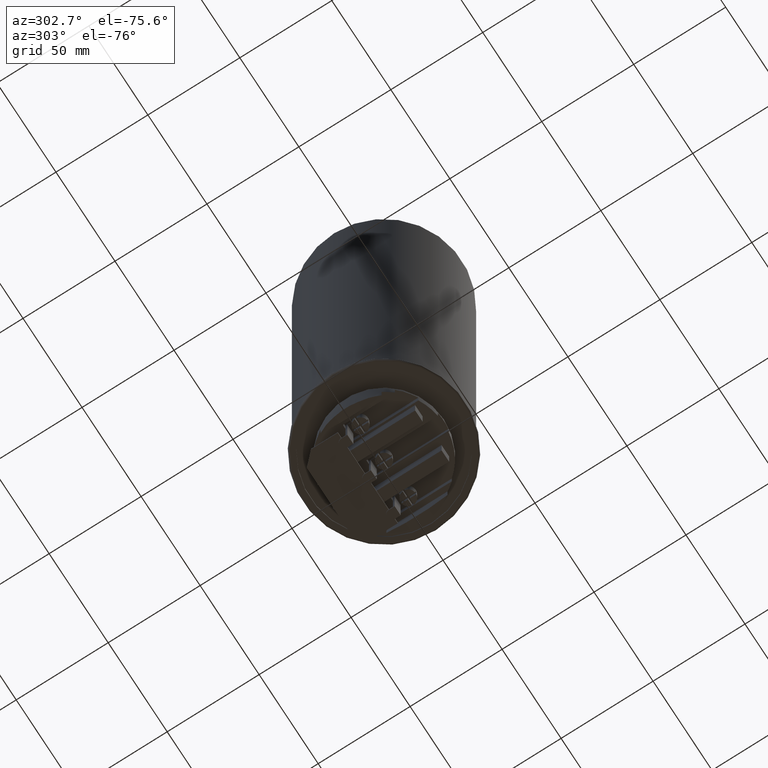
[diagram: clean part render]
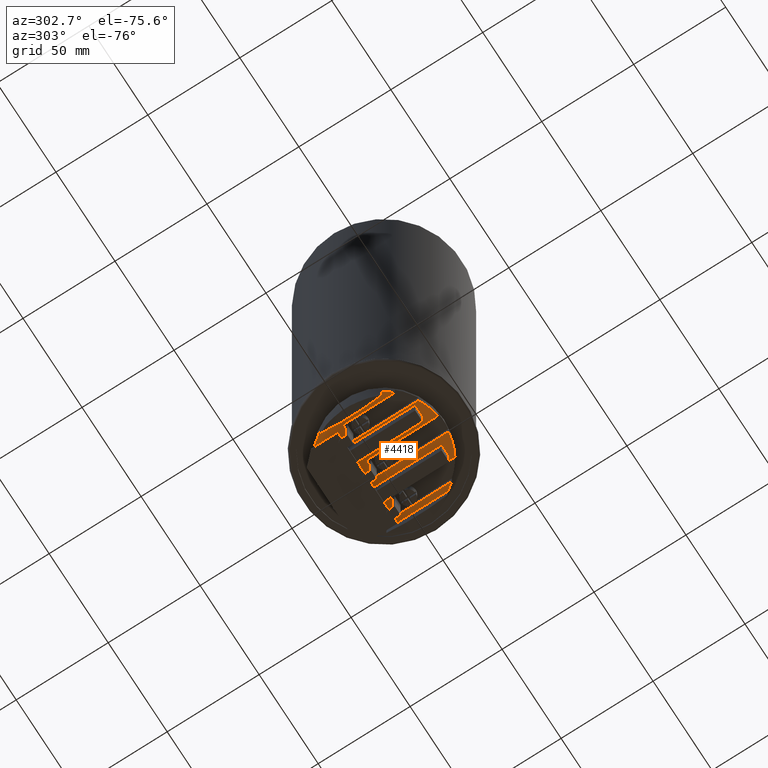
[diagram: same view with one face highlighted and labeled with its STEP entity id]
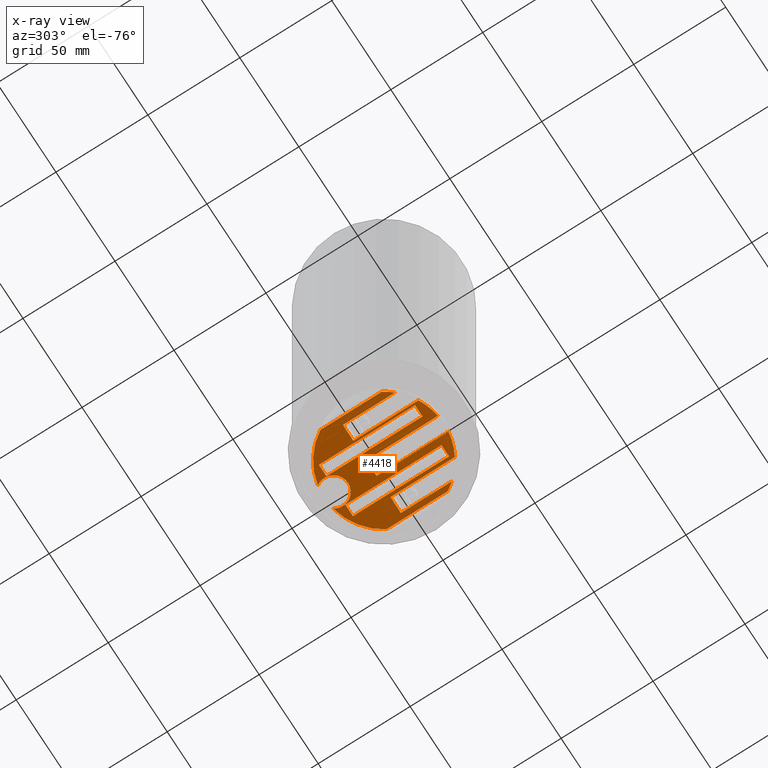
[diagram: x-ray of the same camera — body ghosted, the highlighted face saturated]
A machine part, auxiliary view. The second image highlights one B-rep face of the part: STEP entity #4418.
The next image is the same camera in x-ray: the body ghosted, the highlighted face saturated — about 0% of this face is hidden behind the body in this view.
In plain terms, the highlighted planar face has unit normal (0, 0, 1).
Its self-contained STEP definition (entity closure, byte-faithful):
#195=FACE_BOUND('',#605,.T.);
#196=FACE_BOUND('',#606,.T.);
#211=PLANE('',#4787);
#352=FACE_OUTER_BOUND('',#604,.T.);
#604=EDGE_LOOP('',(#3043,#3044,#3045,#3046,#3047,#3048,#3049,#3050,#3051,
#3052,#3053,#3054,#3055,#3056,#3057,#3058,#3059,#3060));
#605=EDGE_LOOP('',(#3061,#3062,#3063,#3064));
#606=EDGE_LOOP('',(#3065,#3066,#3067,#3068));
#870=CIRCLE('',#4769,1.28);
#872=CIRCLE('',#4771,1.28);
#874=CIRCLE('',#4775,1.28);
#876=CIRCLE('',#4777,1.28);
#878=CIRCLE('',#4781,1.28);
#880=CIRCLE('',#4783,1.28);
#881=CIRCLE('',#4788,0.309);
#1001=LINE('',#6279,#1456);
#1005=LINE('',#6286,#1460);
#1006=LINE('',#6290,#1461);
#1010=LINE('',#6298,#1465);
#1011=LINE('',#6300,#1466);
#1012=LINE('',#6301,#1467);
#1013=LINE('',#6302,#1468);
#1014=LINE('',#6304,#1469);
#1015=LINE('',#6306,#1470);
#1016=LINE('',#6308,#1471);
#1017=LINE('',#6309,#1472);
#1018=LINE('',#6310,#1473);
#1019=LINE('',#6312,#1474);
#1020=LINE('',#6314,#1475);
#1021=LINE('',#6315,#1476);
#1022=LINE('',#6318,#1477);
#1023=LINE('',#6320,#1478);
#1024=LINE('',#6322,#1479);
#1025=LINE('',#6323,#1480);
#1456=VECTOR('',#5150,0.393700787401575);
#1460=VECTOR('',#5156,0.393700787401575);
#1461=VECTOR('',#5159,0.393700787401575);
#1465=VECTOR('',#5165,0.393700787401575);
#1466=VECTOR('',#5166,0.393700787401575);
#1467=VECTOR('',#5167,0.393700787401575);
#1468=VECTOR('',#5168,0.393700787401575);
#1469=VECTOR('',#5171,0.393700787401575);
#1470=VECTOR('',#5172,0.393700787401575);
#1471=VECTOR('',#5173,0.393700787401575);
#1472=VECTOR('',#5174,0.393700787401575);
#1473=VECTOR('',#5175,0.393700787401575);
#1474=VECTOR('',#5176,0.393700787401575);
#1475=VECTOR('',#5177,0.393700787401575);
#1476=VECTOR('',#5178,0.393700787401575);
#1477=VECTOR('',#5179,0.393700787401575);
#1478=VECTOR('',#5180,0.393700787401575);
#1479=VECTOR('',#5181,0.393700787401575);
#1480=VECTOR('',#5182,0.393700787401575);
#1898=VERTEX_POINT('',#6219);
#1901=VERTEX_POINT('',#6224);
#1902=VERTEX_POINT('',#6226);
#1905=VERTEX_POINT('',#6232);
#1906=VERTEX_POINT('',#6234);
#1911=VERTEX_POINT('',#6244);
#1912=VERTEX_POINT('',#6246);
#1915=VERTEX_POINT('',#6252);
#1916=VERTEX_POINT('',#6254);
#1921=VERTEX_POINT('',#6264);
#1922=VERTEX_POINT('',#6266);
#1925=VERTEX_POINT('',#6272);
#1927=VERTEX_POINT('',#6278);
#1929=VERTEX_POINT('',#6284);
#1930=VERTEX_POINT('',#6288);
#1931=VERTEX_POINT('',#6289);
#1934=VERTEX_POINT('',#6297);
#1935=VERTEX_POINT('',#6299);
#1936=VERTEX_POINT('',#6305);
#1937=VERTEX_POINT('',#6307);
#1938=VERTEX_POINT('',#6311);
#1939=VERTEX_POINT('',#6313);
#1940=VERTEX_POINT('',#6316);
#1941=VERTEX_POINT('',#6317);
#1942=VERTEX_POINT('',#6319);
#1943=VERTEX_POINT('',#6321);
#2333=EDGE_CURVE('',#1901,#1902,#870,.T.);
#2337=EDGE_CURVE('',#1905,#1906,#872,.T.);
#2343=EDGE_CURVE('',#1911,#1912,#874,.T.);
#2347=EDGE_CURVE('',#1915,#1916,#876,.T.);
#2353=EDGE_CURVE('',#1921,#1922,#878,.T.);
#2357=EDGE_CURVE('',#1925,#1898,#880,.T.);
#2359=EDGE_CURVE('',#1927,#1898,#1001,.T.);
#2363=EDGE_CURVE('',#1901,#1929,#1005,.T.);
#2364=EDGE_CURVE('',#1930,#1931,#1006,.T.);
#2368=EDGE_CURVE('',#1925,#1934,#1010,.T.);
#2369=EDGE_CURVE('',#1934,#1935,#1011,.T.);
#2370=EDGE_CURVE('',#1935,#1922,#1012,.T.);
#2371=EDGE_CURVE('',#1921,#1916,#1013,.T.);
#2372=EDGE_CURVE('',#1915,#1912,#881,.T.);
#2373=EDGE_CURVE('',#1911,#1906,#1014,.T.);
#2374=EDGE_CURVE('',#1905,#1936,#1015,.T.);
#2375=EDGE_CURVE('',#1936,#1937,#1016,.T.);
#2376=EDGE_CURVE('',#1937,#1902,#1017,.T.);
#2377=EDGE_CURVE('',#1929,#1927,#1018,.T.);
#2378=EDGE_CURVE('',#1931,#1938,#1019,.T.);
#2379=EDGE_CURVE('',#1938,#1939,#1020,.T.);
#2380=EDGE_CURVE('',#1939,#1930,#1021,.T.);
#2381=EDGE_CURVE('',#1940,#1941,#1022,.T.);
#2382=EDGE_CURVE('',#1941,#1942,#1023,.T.);
#2383=EDGE_CURVE('',#1942,#1943,#1024,.T.);
#2384=EDGE_CURVE('',#1943,#1940,#1025,.T.);
#3043=ORIENTED_EDGE('',*,*,#2359,.T.);
#3044=ORIENTED_EDGE('',*,*,#2357,.F.);
#3045=ORIENTED_EDGE('',*,*,#2368,.T.);
#3046=ORIENTED_EDGE('',*,*,#2369,.T.);
#3047=ORIENTED_EDGE('',*,*,#2370,.T.);
#3048=ORIENTED_EDGE('',*,*,#2353,.F.);
#3049=ORIENTED_EDGE('',*,*,#2371,.T.);
#3050=ORIENTED_EDGE('',*,*,#2347,.F.);
#3051=ORIENTED_EDGE('',*,*,#2372,.T.);
#3052=ORIENTED_EDGE('',*,*,#2343,.F.);
#3053=ORIENTED_EDGE('',*,*,#2373,.T.);
#3054=ORIENTED_EDGE('',*,*,#2337,.F.);
#3055=ORIENTED_EDGE('',*,*,#2374,.T.);
#3056=ORIENTED_EDGE('',*,*,#2375,.T.);
#3057=ORIENTED_EDGE('',*,*,#2376,.T.);
#3058=ORIENTED_EDGE('',*,*,#2333,.F.);
#3059=ORIENTED_EDGE('',*,*,#2363,.T.);
#3060=ORIENTED_EDGE('',*,*,#2377,.T.);
#3061=ORIENTED_EDGE('',*,*,#2364,.T.);
#3062=ORIENTED_EDGE('',*,*,#2378,.T.);
#3063=ORIENTED_EDGE('',*,*,#2379,.T.);
#3064=ORIENTED_EDGE('',*,*,#2380,.T.);
#3065=ORIENTED_EDGE('',*,*,#2381,.T.);
#3066=ORIENTED_EDGE('',*,*,#2382,.T.);
#3067=ORIENTED_EDGE('',*,*,#2383,.T.);
#3068=ORIENTED_EDGE('',*,*,#2384,.T.);
#4418=ADVANCED_FACE('',(#352,#195,#196),#211,.F.);
#4769=AXIS2_PLACEMENT_3D('',#6227,#5107,#5108);
#4771=AXIS2_PLACEMENT_3D('',#6235,#5113,#5114);
#4775=AXIS2_PLACEMENT_3D('',#6247,#5123,#5124);
#4777=AXIS2_PLACEMENT_3D('',#6255,#5129,#5130);
#4781=AXIS2_PLACEMENT_3D('',#6267,#5139,#5140);
#4783=AXIS2_PLACEMENT_3D('',#6274,#5145,#5146);
#4787=AXIS2_PLACEMENT_3D('',#6296,#5163,#5164);
#4788=AXIS2_PLACEMENT_3D('',#6303,#5169,#5170);
#5107=DIRECTION('center_axis',(0.,0.,1.));
#5108=DIRECTION('ref_axis',(1.,0.,0.));
#5113=DIRECTION('center_axis',(0.,0.,1.));
#5114=DIRECTION('ref_axis',(1.,0.,0.));
#5123=DIRECTION('center_axis',(0.,0.,1.));
#5124=DIRECTION('ref_axis',(1.,0.,0.));
#5129=DIRECTION('center_axis',(0.,0.,1.));
#5130=DIRECTION('ref_axis',(1.,0.,0.));
#5139=DIRECTION('center_axis',(0.,0.,1.));
#5140=DIRECTION('ref_axis',(1.,0.,0.));
#5145=DIRECTION('center_axis',(0.,0.,1.));
#5146=DIRECTION('ref_axis',(1.,0.,0.));
#5150=DIRECTION('',(0.,-1.,0.));
#5156=DIRECTION('',(0.,1.,-3.26928286192225E-32));
#5159=DIRECTION('',(1.33714663303053E-15,1.,0.));
#5163=DIRECTION('center_axis',(0.,0.,1.));
#5164=DIRECTION('ref_axis',(1.,0.,0.));
#5165=DIRECTION('',(0.,1.,0.));
#5166=DIRECTION('',(-1.,0.,0.));
#5167=DIRECTION('',(0.,-1.,0.));
#5168=DIRECTION('',(1.33561650661417E-16,1.,0.));
#5169=DIRECTION('center_axis',(0.,0.,1.));
#5170=DIRECTION('ref_axis',(1.,0.,0.));
#5171=DIRECTION('',(0.,-1.,0.));
#5172=DIRECTION('',(0.,1.,0.));
#5173=DIRECTION('',(-1.,0.,0.));
#5174=DIRECTION('',(0.,-1.,0.));
#5175=DIRECTION('',(-1.,0.,0.));
#5176=DIRECTION('',(-1.,6.69564094242976E-16,0.));
#5177=DIRECTION('',(-1.69796397845147E-16,-1.,0.));
#5178=DIRECTION('',(1.,0.,0.));
#5179=DIRECTION('',(-4.03266444882224E-16,-1.,0.));
#5180=DIRECTION('',(1.,0.,0.));
#5181=DIRECTION('',(4.24490994612867E-16,1.,0.));
#5182=DIRECTION('',(-1.,6.69564094242977E-16,0.));
#6219=CARTESIAN_POINT('',(-0.176548672566372,-1.2677659745454,-0.66));
#6224=CARTESIAN_POINT('',(0.173451327433628,-1.26819345409583,-0.66));
#6226=CARTESIAN_POINT('',(0.634100687546329,-1.111897620311,-0.66));
#6227=CARTESIAN_POINT('Origin',(0.,0.,-0.66));
#6232=CARTESIAN_POINT('',(0.984100687546329,-0.818502191060503,-0.66));
#6234=CARTESIAN_POINT('',(1.1,-0.654522726878143,-0.66));
#6235=CARTESIAN_POINT('Origin',(0.,0.,-0.66));
#6244=CARTESIAN_POINT('',(1.1,0.654522726878143,-0.66));
#6246=CARTESIAN_POINT('',(0.255138211051322,1.25431435185185,-0.66));
#6247=CARTESIAN_POINT('Origin',(0.,0.,-0.66));
#6252=CARTESIAN_POINT('',(-0.255138211051321,1.25431435185185,-0.66));
#6254=CARTESIAN_POINT('',(-1.1,0.654522726878143,-0.66));
#6255=CARTESIAN_POINT('Origin',(0.,0.,-0.66));
#6264=CARTESIAN_POINT('',(-1.1,-0.654522726878143,-0.66));
#6266=CARTESIAN_POINT('',(-0.95862239354638,-0.848199921357819,-0.66));
#6267=CARTESIAN_POINT('Origin',(0.,0.,-0.66));
#6272=CARTESIAN_POINT('',(-0.608295246994656,-1.12622239921061,-0.66));
#6274=CARTESIAN_POINT('Origin',(0.,0.,-0.66));
#6278=CARTESIAN_POINT('',(-0.176548672566372,0.264393364678168,-0.66));
#6279=CARTESIAN_POINT('',(-0.176548672566372,-0.678100524286395,-0.66));
#6284=CARTESIAN_POINT('',(0.173451327433628,0.264393364678168,-0.66));
#6286=CARTESIAN_POINT('',(0.173451327433628,-1.02969364376012,-0.66));
#6288=CARTESIAN_POINT('',(-0.316,-1.02969364376012,-0.66));
#6289=CARTESIAN_POINT('',(-0.315999999999997,1.02969364376012,-0.66));
#6290=CARTESIAN_POINT('',(-0.315999999999999,-0.514846821880062,-0.66));
#6296=CARTESIAN_POINT('Origin',(0.,0.,-0.66));
#6297=CARTESIAN_POINT('',(-0.608295246994656,0.264393364678169,-0.66));
#6298=CARTESIAN_POINT('',(-0.608295246994656,0.132196682339084,-0.66));
#6299=CARTESIAN_POINT('',(-0.958622352593673,0.264393364678169,-0.66));
#6300=CARTESIAN_POINT('',(-0.479311176296836,0.264393364678169,-0.66));
#6301=CARTESIAN_POINT('',(-0.95862239354638,-0.390331739430815,-0.66));
#6302=CARTESIAN_POINT('',(-1.1,-0.327261363439071,-0.66));
#6303=CARTESIAN_POINT('Origin',(6.28727100289488E-16,1.08,-0.66));
#6304=CARTESIAN_POINT('',(1.1,0.327261363439071,-0.66));
#6305=CARTESIAN_POINT('',(0.984100687546329,0.269627160856184,-0.66));
#6306=CARTESIAN_POINT('',(0.984100687546329,0.134813580428092,-0.66));
#6307=CARTESIAN_POINT('',(0.634100687546329,0.269627160856184,-0.66));
#6308=CARTESIAN_POINT('',(0.317050343773164,0.269627160856184,-0.66));
#6309=CARTESIAN_POINT('',(0.634100687546329,-0.37759257232303,-0.66));
#6310=CARTESIAN_POINT('',(-0.157999999999999,0.264393364678168,-0.66));
#6311=CARTESIAN_POINT('',(-0.566,1.02969364376012,-0.66));
#6312=CARTESIAN_POINT('',(-0.157999999999998,1.02969364376012,-0.66));
#6313=CARTESIAN_POINT('',(-0.566,-1.02969364376012,-0.66));
#6314=CARTESIAN_POINT('',(-0.566,0.514846821880062,-0.66));
#6315=CARTESIAN_POINT('',(-0.283,-1.02969364376012,-0.66));
#6316=CARTESIAN_POINT('',(0.316000000000001,1.02969364376012,-0.66));
#6317=CARTESIAN_POINT('',(0.316,-1.02969364376012,-0.66));
#6318=CARTESIAN_POINT('',(0.316,0.514846821880062,-0.66));
#6319=CARTESIAN_POINT('',(0.566,-1.02969364376012,-0.66));
#6320=CARTESIAN_POINT('',(0.158,-1.02969364376012,-0.66));
#6321=CARTESIAN_POINT('',(0.566000000000001,1.02969364376012,-0.66));
#6322=CARTESIAN_POINT('',(0.566,-0.514846821880062,-0.66));
#6323=CARTESIAN_POINT('',(0.283000000000001,1.02969364376012,-0.66));